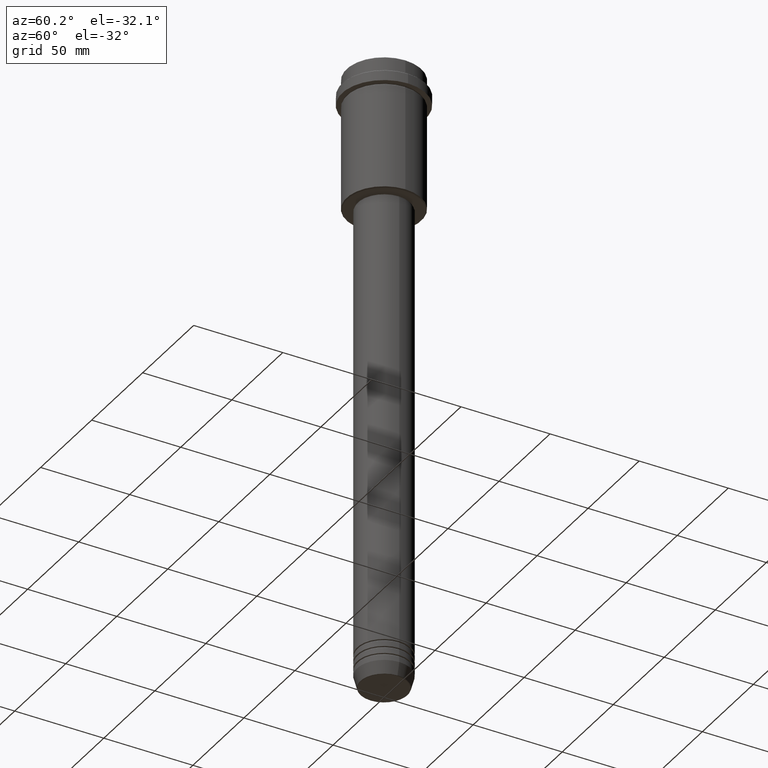
[diagram: clean part render]
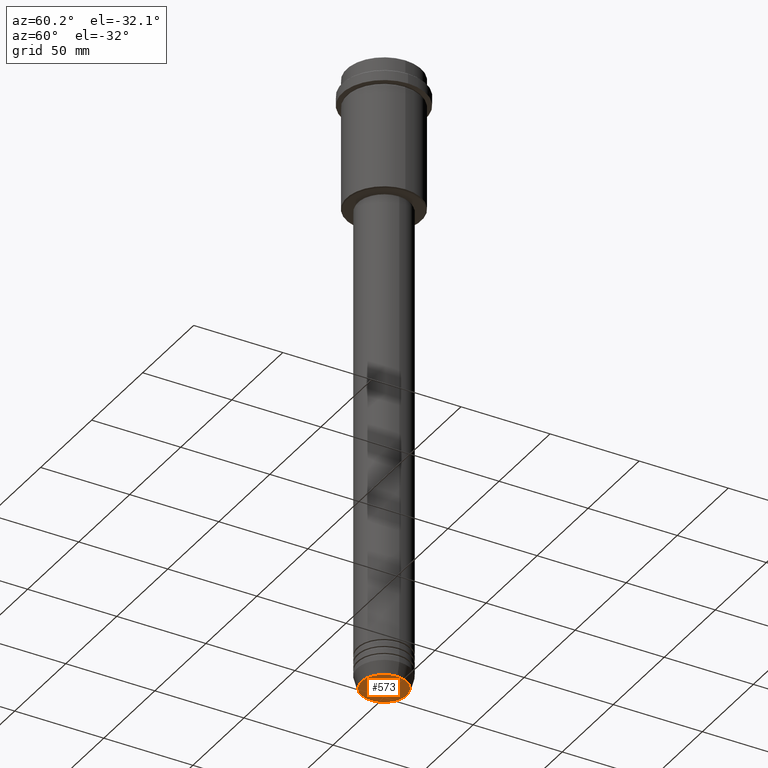
[diagram: same view with one face highlighted and labeled with its STEP entity id]
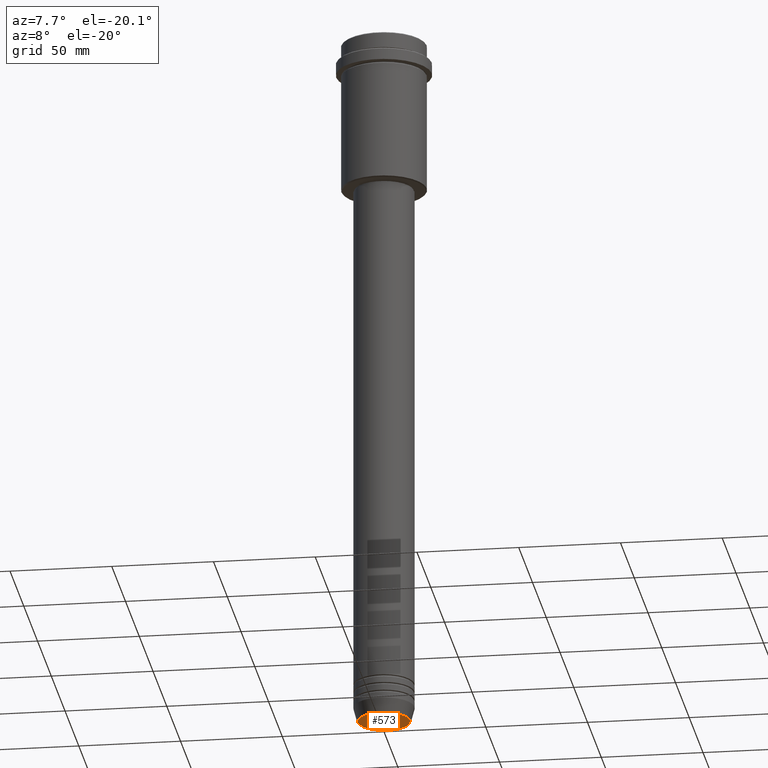
[diagram: same view with one face highlighted and labeled with its STEP entity id]
A machine part, auxiliary view. The second image highlights one B-rep face of the part: STEP entity #573.
A second angle (auxiliary view) of the same face is appended — the face is thin or edge-on in the first view.
In plain terms, the highlighted planar face has unit normal (0, -0, 1).
Its self-contained STEP definition (entity closure, byte-faithful):
#41 = VERTEX_POINT ( 'NONE', #73 ) ;
#45 = ORIENTED_EDGE ( 'NONE', *, *, #79, .T. ) ;
#69 = CIRCLE ( 'NONE', #432, 12.74069215899265828 ) ;
#73 = CARTESIAN_POINT ( 'NONE',  ( 12.74069215899265828, 0.000000000000000000, -350.0000000000000568 ) ) ;
#79 = EDGE_CURVE ( 'NONE', #667, #41, #896, .T. ) ;
#90 = CARTESIAN_POINT ( 'NONE',  ( 0.000000000000000000, 0.000000000000000000, -350.0000000000000568 ) ) ;
#303 = PLANE ( 'NONE',  #1007 ) ;
#417 = FACE_OUTER_BOUND ( 'NONE', #1340, .T. ) ;
#432 = AXIS2_PLACEMENT_3D ( 'NONE', #959, #433, #538 ) ;
#433 = DIRECTION ( 'NONE',  ( 0.000000000000000000, 0.000000000000000000, -1.000000000000000000 ) ) ;
#445 = DIRECTION ( 'NONE',  ( 0.000000000000000000, -0.000000000000000000, 1.000000000000000000 ) ) ;
#471 = AXIS2_PLACEMENT_3D ( 'NONE', #1072, #508, #1288 ) ;
#508 = DIRECTION ( 'NONE',  ( 0.000000000000000000, 0.000000000000000000, -1.000000000000000000 ) ) ;
#538 = DIRECTION ( 'NONE',  ( 1.000000000000000000, 0.000000000000000000, 0.000000000000000000 ) ) ;
#573 = ADVANCED_FACE ( 'NONE', ( #417 ), #303, .F. ) ;
#663 = ORIENTED_EDGE ( 'NONE', *, *, #925, .T. ) ;
#667 = VERTEX_POINT ( 'NONE', #1006 ) ;
#891 = DIRECTION ( 'NONE',  ( 1.000000000000000000, 0.000000000000000000, 0.000000000000000000 ) ) ;
#896 = CIRCLE ( 'NONE', #471, 12.74069215899265828 ) ;
#925 = EDGE_CURVE ( 'NONE', #41, #667, #69, .T. ) ;
#959 = CARTESIAN_POINT ( 'NONE',  ( 0.000000000000000000, 0.000000000000000000, -350.0000000000000568 ) ) ;
#1006 = CARTESIAN_POINT ( 'NONE',  ( -12.74069215899265828, 1.589857736427680246E-15, -350.0000000000000568 ) ) ;
#1007 = AXIS2_PLACEMENT_3D ( 'NONE', #90, #445, #891 ) ;
#1072 = CARTESIAN_POINT ( 'NONE',  ( 0.000000000000000000, 0.000000000000000000, -350.0000000000000568 ) ) ;
#1288 = DIRECTION ( 'NONE',  ( 1.000000000000000000, 0.000000000000000000, 0.000000000000000000 ) ) ;
#1340 = EDGE_LOOP ( 'NONE', ( #663, #45 ) ) ;